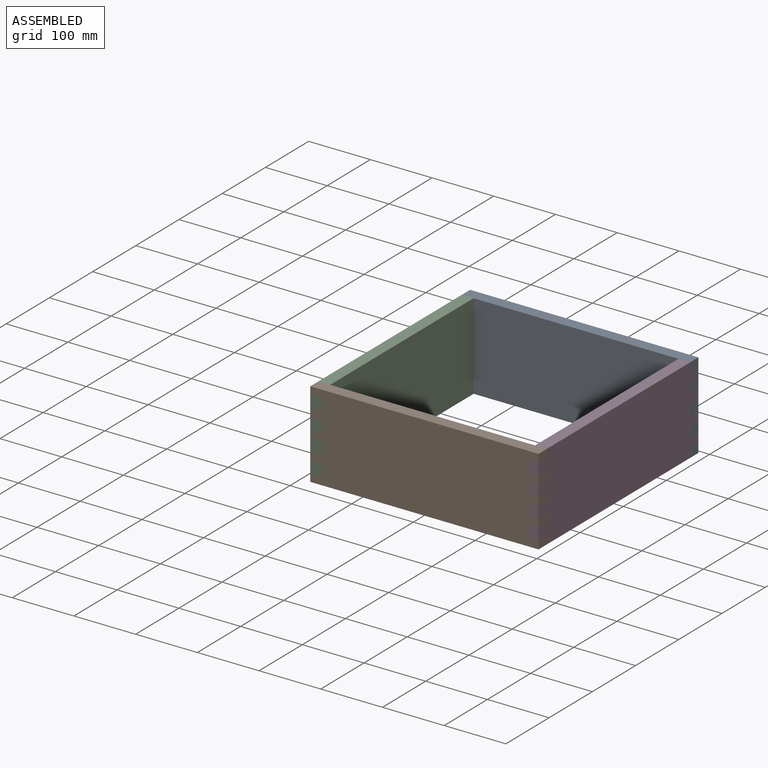
[diagram: assembled view]
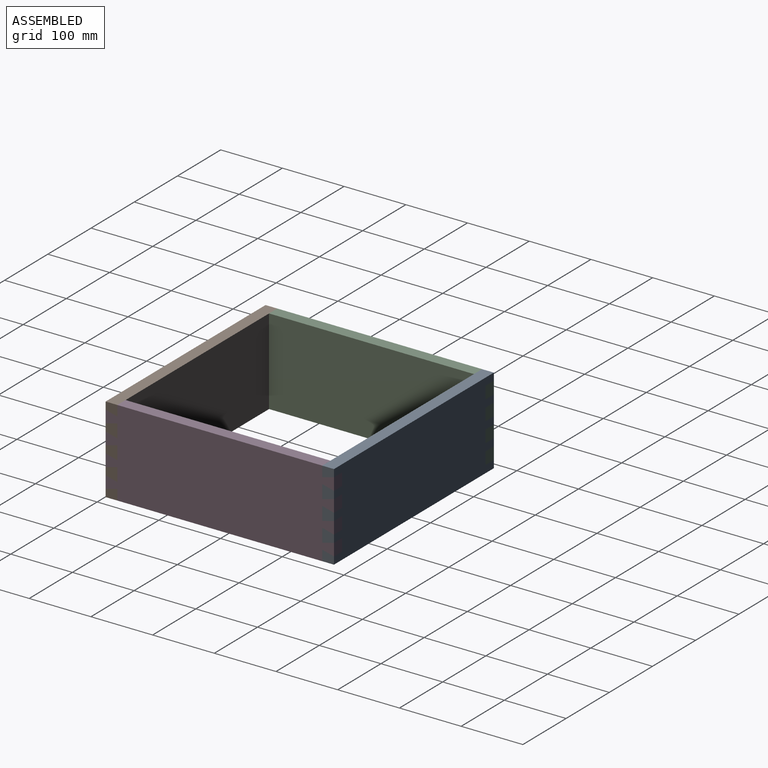
[diagram: assembled view, second angle]
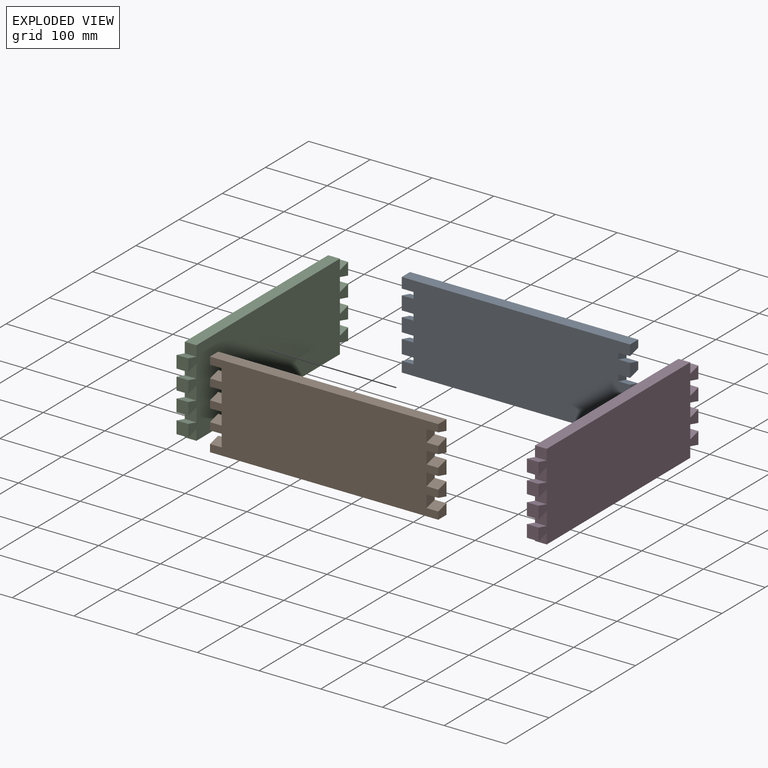
[diagram: exploded view]
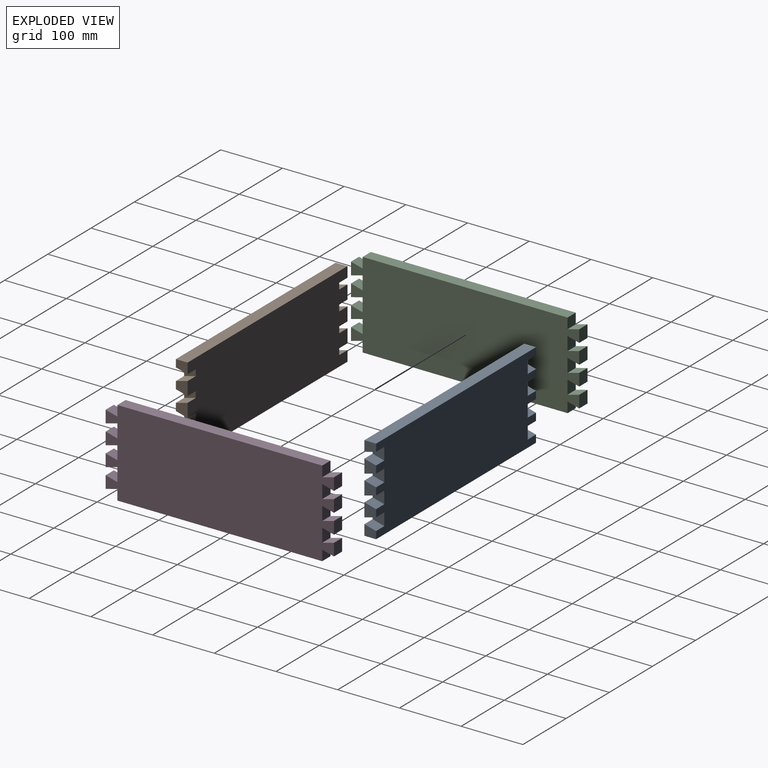
[diagram: exploded view, second angle]
ASSEMBLY  parts=4 mates=3
PART A: 38 faces, bbox 370x19x140 mm
  f0: plane 19x17mm, normal (-1,0,0), area 275.5mm2, adj f5,f7,f8,f18
  f1: plane 22x19mm, normal (-1,0,0), area 323mm2, adj f5,f8,f15,f19
  f2: plane 22x19mm, normal (-1,0,0), area 323mm2, adj f5,f8,f12,f16
  f3: plane 22x19mm, normal (-1,0,0), area 323mm2, adj f5,f8,f10,f13
  f4: plane 19x17mm, normal (-1,0,0), area 275.5mm2, adj f5,f6,f8,f9
  f5: plane 370x140mm, normal (0,-1,0), area 50280mm2, adj f0,f1,f2,f3,f4,f6,f7,f9
  f6: plane 370x19mm, normal (0,0,-1), area 7030mm2, adj f4,f5,f8,f25
  f7: plane 370x19mm, normal (0,0,1), area 7030mm2, adj f0,f5,f8,f21
  f8: plane 370x140mm, normal (0,1,0), area 48760mm2, adj f0,f1,f2,f3,f4,f6,f7,f9
  f9: plane 19x19mm, normal (0,0.25,0.97), area 373.3mm2, adj f4,f5,f8,f11
  f10: plane 19x19mm, normal (0,0.25,-0.97), area 373.3mm2, adj f3,f5,f8,f11
  f11: plane 20x19mm, normal (-1,0,0), area 285mm2, adj f5,f8,f9,f10
  f12: plane 19x19mm, normal (0,0.25,-0.97), area 373.3mm2, adj f2,f5,f8,f14
  f13: plane 19x19mm, normal (0,0.25,0.97), area 373.3mm2, adj f3,f5,f8,f14
  f14: plane 20x19mm, normal (-1,0,0), area 285mm2, adj f5,f8,f12,f13
  f15: plane 19x19mm, normal (0,0.25,-0.97), area 373.3mm2, adj f1,f5,f8,f17
  f16: plane 19x19mm, normal (0,0.25,0.97), area 373.3mm2, adj f2,f5,f8,f17
  f17: plane 20x19mm, normal (-1,0,0), area 285mm2, adj f5,f8,f15,f16
  f18: plane 19x19mm, normal (0,0.25,-0.97), area 373.3mm2, adj f0,f5,f8,f20
  f19: plane 19x19mm, normal (0,0.25,0.97), area 373.3mm2, adj f1,f5,f8,f20
  f20: plane 20x19mm, normal (-1,0,0), area 285mm2, adj f5,f8,f18,f19
  f21: plane 19x17mm, normal (1,0,0), area 275.5mm2, adj f5,f7,f8,f35
  f22: plane 22x19mm, normal (1,0,0), area 323mm2, adj f5,f8,f32,f36
  f23: plane 22x19mm, normal (1,0,0), area 323mm2, adj f5,f8,f29,f33
  f24: plane 22x19mm, normal (1,0,0), area 323mm2, adj f5,f8,f27,f30
  f25: plane 19x17mm, normal (1,0,0), area 275.5mm2, adj f5,f6,f8,f26
  f26: plane 19x19mm, normal (0,0.25,0.97), area 373.3mm2, adj f5,f8,f25,f28
  f27: plane 19x19mm, normal (0,0.25,-0.97), area 373.3mm2, adj f5,f8,f24,f28
  f28: plane 20x19mm, normal (1,0,0), area 285mm2, adj f5,f8,f26,f27
  f29: plane 19x19mm, normal (0,0.25,-0.97), area 373.3mm2, adj f5,f8,f23,f31
  f30: plane 19x19mm, normal (0,0.25,0.97), area 373.3mm2, adj f5,f8,f24,f31
  f31: plane 20x19mm, normal (1,0,0), area 285mm2, adj f5,f8,f29,f30
  f32: plane 19x19mm, normal (0,0.25,-0.97), area 373.3mm2, adj f5,f8,f22,f34
  f33: plane 19x19mm, normal (0,0.25,0.97), area 373.3mm2, adj f5,f8,f23,f34
  f34: plane 20x19mm, normal (1,0,0), area 285mm2, adj f5,f8,f32,f33
  f35: plane 19x19mm, normal (0,0.25,-0.97), area 373.3mm2, adj f5,f8,f21,f37
  f36: plane 19x19mm, normal (0,0.25,0.97), area 373.3mm2, adj f5,f8,f22,f37
  f37: plane 20x19mm, normal (1,0,0), area 285mm2, adj f5,f8,f35,f36
PART B: 38 faces, bbox 370x19x140 mm
  f0: plane 19x17mm, normal (1,0,0), area 275.5mm2, adj f5,f7,f8,f18
  f1: plane 22x19mm, normal (1,0,0), area 323mm2, adj f5,f8,f15,f19
  f2: plane 22x19mm, normal (1,0,0), area 323mm2, adj f5,f8,f12,f16
  f3: plane 22x19mm, normal (1,0,0), area 323mm2, adj f5,f8,f10,f13
  f4: plane 19x17mm, normal (1,0,0), area 275.5mm2, adj f5,f6,f8,f9
  f5: plane 370x140mm, normal (0,1,0), area 50280mm2, adj f0,f1,f2,f3,f4,f6,f7,f9
  f6: plane 370x19mm, normal (0,0,-1), area 7030mm2, adj f4,f5,f8,f25
  f7: plane 370x19mm, normal (0,0,1), area 7030mm2, adj f0,f5,f8,f21
  f8: plane 370x140mm, normal (0,-1,0), area 48760mm2, adj f0,f1,f2,f3,f4,f6,f7,f9
  f9: plane 19x19mm, normal (0,-0.25,0.97), area 373.3mm2, adj f4,f5,f8,f11
  f10: plane 19x19mm, normal (0,-0.25,-0.97), area 373.3mm2, adj f3,f5,f8,f11
  f11: plane 20x19mm, normal (1,0,0), area 285mm2, adj f5,f8,f9,f10
  f12: plane 19x19mm, normal (0,-0.25,-0.97), area 373.3mm2, adj f2,f5,f8,f14
  f13: plane 19x19mm, normal (0,-0.25,0.97), area 373.3mm2, adj f3,f5,f8,f14
  f14: plane 20x19mm, normal (1,0,0), area 285mm2, adj f5,f8,f12,f13
  f15: plane 19x19mm, normal (0,-0.25,-0.97), area 373.3mm2, adj f1,f5,f8,f17
  f16: plane 19x19mm, normal (0,-0.25,0.97), area 373.3mm2, adj f2,f5,f8,f17
  f17: plane 20x19mm, normal (1,0,0), area 285mm2, adj f5,f8,f15,f16
  f18: plane 19x19mm, normal (0,-0.25,-0.97), area 373.3mm2, adj f0,f5,f8,f20
  f19: plane 19x19mm, normal (0,-0.25,0.97), area 373.3mm2, adj f1,f5,f8,f20
  f20: plane 20x19mm, normal (1,0,0), area 285mm2, adj f5,f8,f18,f19
  f21: plane 19x17mm, normal (-1,0,0), area 275.5mm2, adj f5,f7,f8,f35
  f22: plane 22x19mm, normal (-1,0,0), area 323mm2, adj f5,f8,f32,f36
  f23: plane 22x19mm, normal (-1,0,0), area 323mm2, adj f5,f8,f29,f33
  f24: plane 22x19mm, normal (-1,0,0), area 323mm2, adj f5,f8,f27,f30
  f25: plane 19x17mm, normal (-1,0,0), area 275.5mm2, adj f5,f6,f8,f26
  f26: plane 19x19mm, normal (0,-0.25,0.97), area 373.3mm2, adj f5,f8,f25,f28
  f27: plane 19x19mm, normal (0,-0.25,-0.97), area 373.3mm2, adj f5,f8,f24,f28
  f28: plane 20x19mm, normal (-1,0,0), area 285mm2, adj f5,f8,f26,f27
  f29: plane 19x19mm, normal (0,-0.25,-0.97), area 373.3mm2, adj f5,f8,f23,f31
  f30: plane 19x19mm, normal (0,-0.25,0.97), area 373.3mm2, adj f5,f8,f24,f31
  f31: plane 20x19mm, normal (-1,0,0), area 285mm2, adj f5,f8,f29,f30
  f32: plane 19x19mm, normal (0,-0.25,-0.97), area 373.3mm2, adj f5,f8,f22,f34
  f33: plane 19x19mm, normal (0,-0.25,0.97), area 373.3mm2, adj f5,f8,f23,f34
  f34: plane 20x19mm, normal (-1,0,0), area 285mm2, adj f5,f8,f32,f33
  f35: plane 19x19mm, normal (0,-0.25,-0.97), area 373.3mm2, adj f5,f8,f21,f37
  f36: plane 19x19mm, normal (0,-0.25,0.97), area 373.3mm2, adj f5,f8,f22,f37
  f37: plane 20x19mm, normal (-1,0,0), area 285mm2, adj f5,f8,f35,f36
PART C: 38 faces, bbox 370x19x140 mm
  f0: plane 22x19mm, normal (-1,0,0), area 418mm2, adj f1,f18,f19,f20
  f1: plane 19x19mm, normal (0.25,0,0.97), area 373.3mm2, adj f0,f2,f19,f20
  f2: plane 20x19mm, normal (-1,0,0), area 380mm2, adj f1,f3,f19,f20
  f3: plane 19x19mm, normal (0.25,0,-0.97), area 373.3mm2, adj f2,f4,f19,f20
  f4: plane 22x19mm, normal (-1,0,0), area 418mm2, adj f3,f5,f19,f20
  f5: plane 19x19mm, normal (0.25,0,0.97), area 373.3mm2, adj f4,f6,f19,f20
  f6: plane 20x19mm, normal (-1,0,0), area 380mm2, adj f5,f7,f19,f20
  f7: plane 19x19mm, normal (0.25,0,-0.97), area 373.3mm2, adj f6,f8,f19,f20
  f8: plane 22x19mm, normal (-1,0,0), area 418mm2, adj f7,f9,f19,f20
  f9: plane 19x19mm, normal (0.25,0,0.97), area 373.3mm2, adj f8,f10,f19,f20
  f10: plane 20x19mm, normal (-1,0,0), area 380mm2, adj f9,f11,f19,f20
  f11: plane 19x19mm, normal (0.25,0,-0.97), area 373.3mm2, adj f10,f12,f19,f20
  f12: plane 19x17mm, normal (-1,0,0), area 323mm2, adj f11,f13,f19,f20
  f13: plane 332x19mm, normal (0,0,-1), area 6308mm2, adj f12,f19,f20,f33
  f14: plane 332x19mm, normal (0,0,1), area 6308mm2, adj f15,f19,f20,f34
  f15: plane 19x17mm, normal (-1,0,0), area 323mm2, adj f14,f16,f19,f20
  f16: plane 19x19mm, normal (0.25,0,0.97), area 373.3mm2, adj f15,f17,f19,f20
  f17: plane 20x19mm, normal (-1,0,0), area 380mm2, adj f16,f18,f19,f20
  f18: plane 19x19mm, normal (0.25,0,-0.97), area 373.3mm2, adj f0,f17,f19,f20
  f19: plane 370x140mm, normal (0,-1,0), area 48760mm2, adj f0,f1,f2,f3,f4,f5,f6,f7
  f20: plane 370x140mm, normal (0,1,0), area 48760mm2, adj f0,f1,f2,f3,f4,f5,f6,f7
  f21: plane 22x19mm, normal (1,0,0), area 418mm2, adj f19,f20,f22,f37
  f22: plane 19x19mm, normal (-0.25,0,0.97), area 373.3mm2, adj f19,f20,f21,f23
  f23: plane 20x19mm, normal (1,0,0), area 380mm2, adj f19,f20,f22,f24
  f24: plane 19x19mm, normal (-0.25,0,-0.97), area 373.3mm2, adj f19,f20,f23,f25
  f25: plane 22x19mm, normal (1,0,0), area 418mm2, adj f19,f20,f24,f26
  f26: plane 19x19mm, normal (-0.25,0,0.97), area 373.3mm2, adj f19,f20,f25,f27
  f27: plane 20x19mm, normal (1,0,0), area 380mm2, adj f19,f20,f26,f28
  f28: plane 19x19mm, normal (-0.25,0,-0.97), area 373.3mm2, adj f19,f20,f27,f29
  f29: plane 22x19mm, normal (1,0,0), area 418mm2, adj f19,f20,f28,f30
  f30: plane 19x19mm, normal (-0.25,0,0.97), area 373.3mm2, adj f19,f20,f29,f31
  f31: plane 20x19mm, normal (1,0,0), area 380mm2, adj f19,f20,f30,f32
  f32: plane 19x19mm, normal (-0.25,0,-0.97), area 373.3mm2, adj f19,f20,f31,f33
  f33: plane 19x17mm, normal (1,0,0), area 323mm2, adj f13,f19,f20,f32
  f34: plane 19x17mm, normal (1,0,0), area 323mm2, adj f14,f19,f20,f35
  f35: plane 19x19mm, normal (-0.25,0,0.97), area 373.3mm2, adj f19,f20,f34,f36
  f36: plane 20x19mm, normal (1,0,0), area 380mm2, adj f19,f20,f35,f37
  f37: plane 19x19mm, normal (-0.25,0,-0.97), area 373.3mm2, adj f19,f20,f21,f36
PART D: same geometry as C
PLACE A t=(25.38,180.65,-23.6)mm
PLACE B t=(395.38,-151.35,-23.6)mm
PLACE C rot(axis=(0,0,-1),90deg) t=(44.38,180.65,-23.6)mm
PLACE D rot(axis=(0,0,1),90deg) t=(376.38,-189.35,-23.6)mm
MATE fastened D.f19 <-> A.f21  axis (1,0,0) through (395.38,180.65,104.4)mm
MATE fastened C.f19 <-> A.f0  axis (-1,0,0) through (25.38,180.65,104.4)mm
MATE fastened B.f0 <-> D.f19  axis (1,0,0) through (395.38,-170.35,99.4)mm
